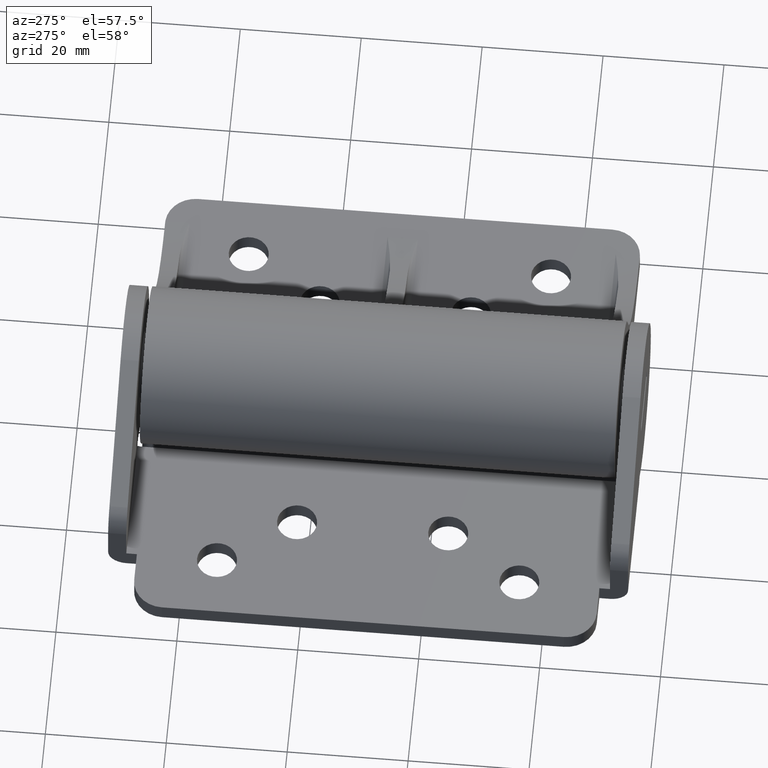
[diagram: clean part render]
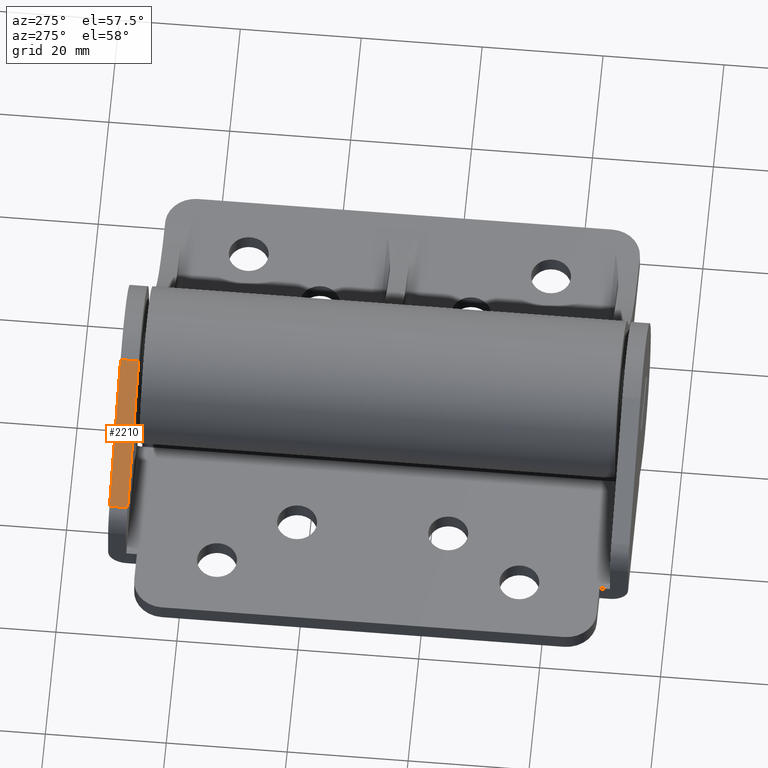
[diagram: same view with one face highlighted and labeled with its STEP entity id]
A machine part, auxiliary view. The second image highlights one B-rep face of the part: STEP entity #2210.
In plain terms, the highlighted planar face has unit normal (-0.5, -0, 0.866).
Its self-contained STEP definition (entity closure, byte-faithful):
#91 = CARTESIAN_POINT ( 'NONE',  ( -27.50000000000000000, 0.8660254000000120500, 86.00000000000000000 ) ) ;
#218 = EDGE_CURVE ( 'NONE', #2380, #3473, #325, .T. ) ;
#298 = CARTESIAN_POINT ( 'NONE',  ( -6.500000000000000000, -11.25833020000000000, -914.0000000000000000 ) ) ;
#321 = LINE ( 'NONE', #91, #2594 ) ;
#325 = LINE ( 'NONE', #934, #3414 ) ;
#499 = VERTEX_POINT ( 'NONE', #1235 ) ;
#529 = DIRECTION ( 'NONE',  ( 0.0000000000000000000, 0.0000000000000000000, 1.000000000000000000 ) ) ;
#716 = EDGE_CURVE ( 'NONE', #3473, #2284, #321, .T. ) ;
#733 = ORIENTED_EDGE ( 'NONE', *, *, #1784, .F. ) ;
#804 = VECTOR ( 'NONE', #2848, 999.9999999999998900 ) ;
#934 = CARTESIAN_POINT ( 'NONE',  ( -27.50000000000000000, 0.8660253810777909200, -914.0000000000000000 ) ) ;
#997 = LINE ( 'NONE', #298, #1879 ) ;
#1191 = PLANE ( 'NONE',  #3658 ) ;
#1235 = CARTESIAN_POINT ( 'NONE',  ( -6.499999990870000100, -11.25833025446890000, 83.00000000000000000 ) ) ;
#1589 = LINE ( 'NONE', #1780, #804 ) ;
#1703 = EDGE_CURVE ( 'NONE', #499, #2284, #997, .T. ) ;
#1780 = CARTESIAN_POINT ( 'NONE',  ( -6.499999990870009900, -11.25833025446890000, 83.00000000000000000 ) ) ;
#1784 = EDGE_CURVE ( 'NONE', #499, #2380, #1589, .T. ) ;
#1796 = DIRECTION ( 'NONE',  ( 0.8660254047305495600, -0.4999999983612877800, 0.0000000000000000000 ) ) ;
#1838 = CARTESIAN_POINT ( 'NONE',  ( -6.500000000000000000, -11.25833020000000000, 86.00000000000000000 ) ) ;
#1865 = CARTESIAN_POINT ( 'NONE',  ( -27.49999999648859700, 0.8660253790504099900, 83.00000000000000000 ) ) ;
#1879 = VECTOR ( 'NONE', #529, 1000.000000000000000 ) ;
#2031 = ORIENTED_EDGE ( 'NONE', *, *, #1703, .T. ) ;
#2210 = ADVANCED_FACE ( 'NONE', ( #3784 ), #1191, .T. ) ;
#2284 = VERTEX_POINT ( 'NONE', #1838 ) ;
#2368 = CARTESIAN_POINT ( 'NONE',  ( -27.50000000000000000, 0.8660253810777909200, 86.00000000000000000 ) ) ;
#2380 = VERTEX_POINT ( 'NONE', #1865 ) ;
#2402 = ORIENTED_EDGE ( 'NONE', *, *, #218, .F. ) ;
#2590 = ORIENTED_EDGE ( 'NONE', *, *, #716, .F. ) ;
#2594 = VECTOR ( 'NONE', #2613, 1000.000000000000100 ) ;
#2613 = DIRECTION ( 'NONE',  ( 0.8660254047305495600, -0.4999999983612877200, -0.0000000000000000000 ) ) ;
#2848 = DIRECTION ( 'NONE',  ( -0.8660254041899159100, 0.4999999992976929000, -0.0000000000000000000 ) ) ;
#3189 = EDGE_LOOP ( 'NONE', ( #2402, #733, #2031, #2590 ) ) ;
#3296 = CARTESIAN_POINT ( 'NONE',  ( -27.50000000000000000, 0.8660254000000120500, -914.0000000000000000 ) ) ;
#3414 = VECTOR ( 'NONE', #3636, 1000.000000000000000 ) ;
#3473 = VERTEX_POINT ( 'NONE', #2368 ) ;
#3589 = DIRECTION ( 'NONE',  ( -0.4999999983612877800, -0.8660254047305495600, 0.0000000000000000000 ) ) ;
#3636 = DIRECTION ( 'NONE',  ( 0.0000000000000000000, 0.0000000000000000000, 1.000000000000000000 ) ) ;
#3658 = AXIS2_PLACEMENT_3D ( 'NONE', #3296, #3589, #1796 ) ;
#3784 = FACE_OUTER_BOUND ( 'NONE', #3189, .T. ) ;